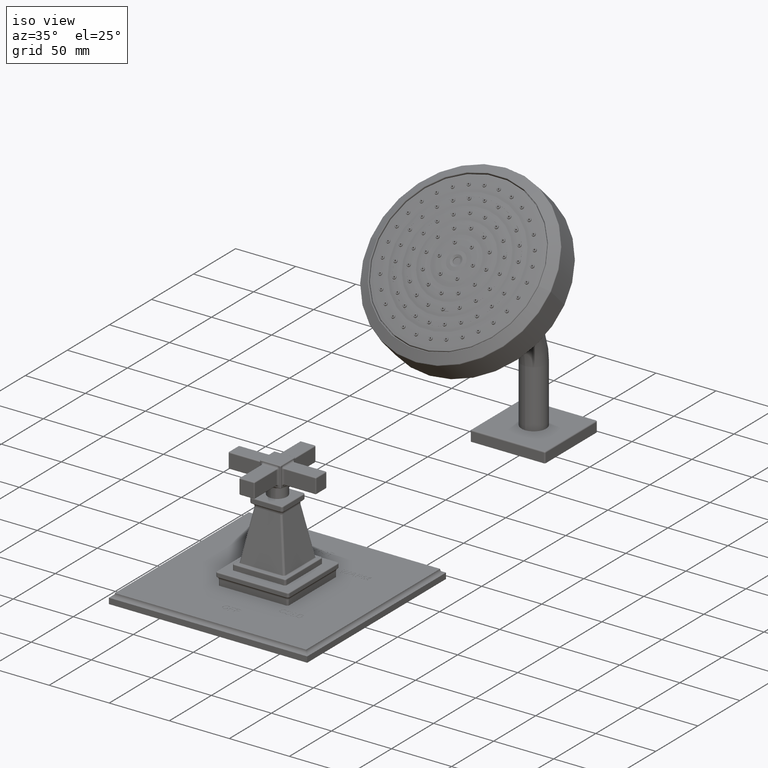
[diagram: clean part render]
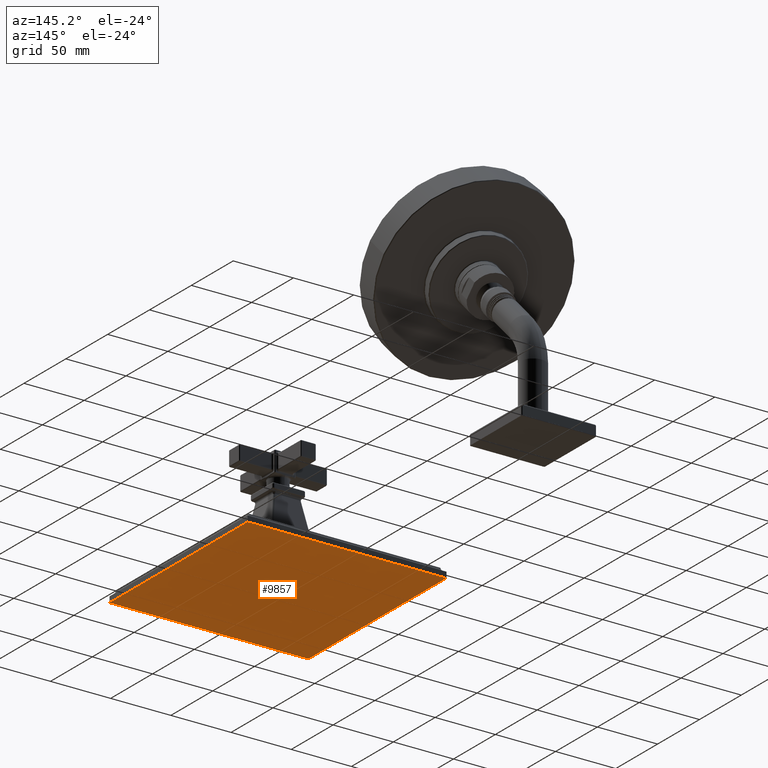
[diagram: tour spotlight — one face highlighted and labeled with its STEP entity id]
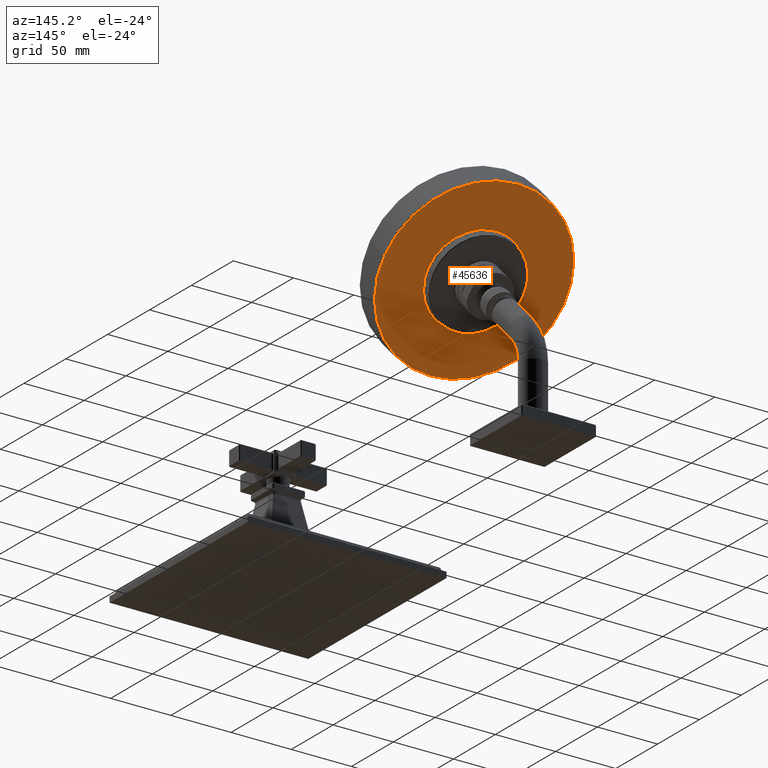
[diagram: tour spotlight — one face highlighted and labeled with its STEP entity id]
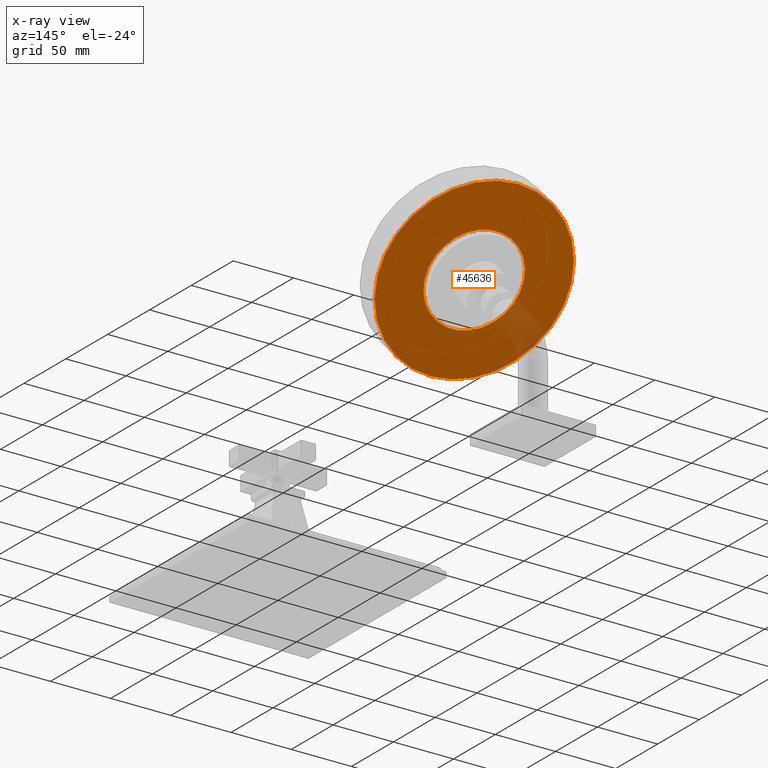
[diagram: x-ray of the same camera — body ghosted, this tour face saturated]
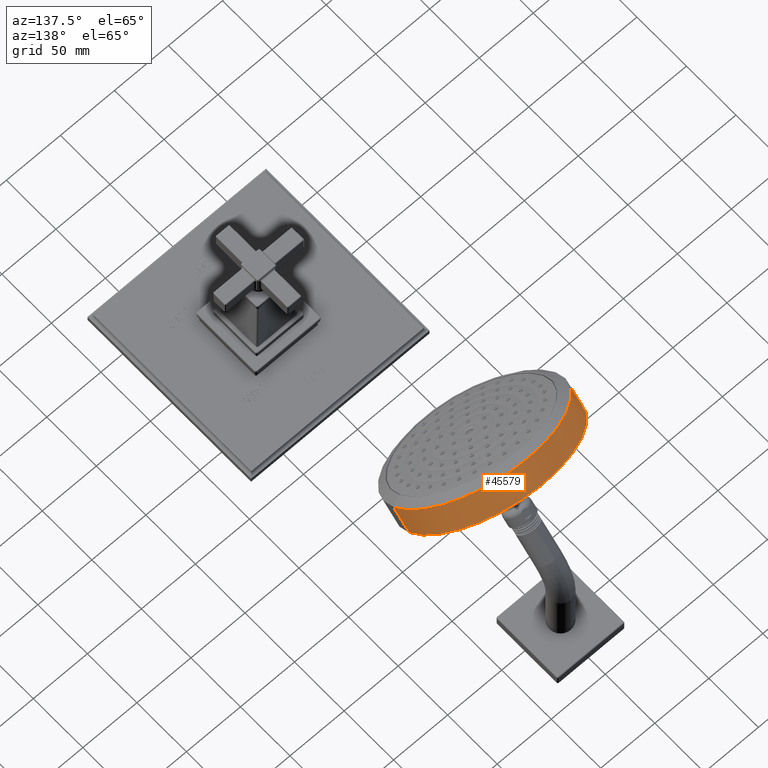
[diagram: tour spotlight — one face highlighted and labeled with its STEP entity id]
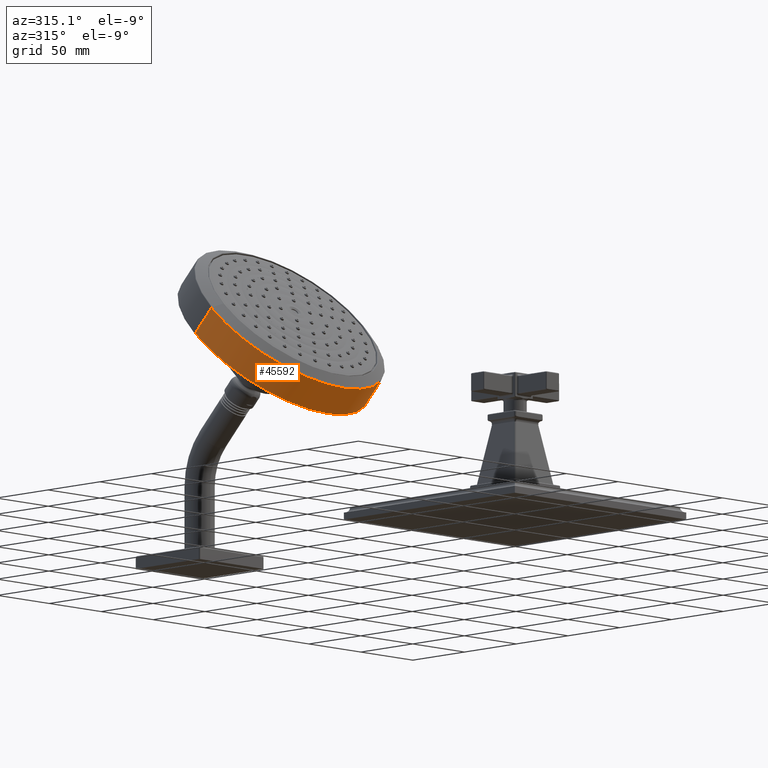
[diagram: tour spotlight — one face highlighted and labeled with its STEP entity id]
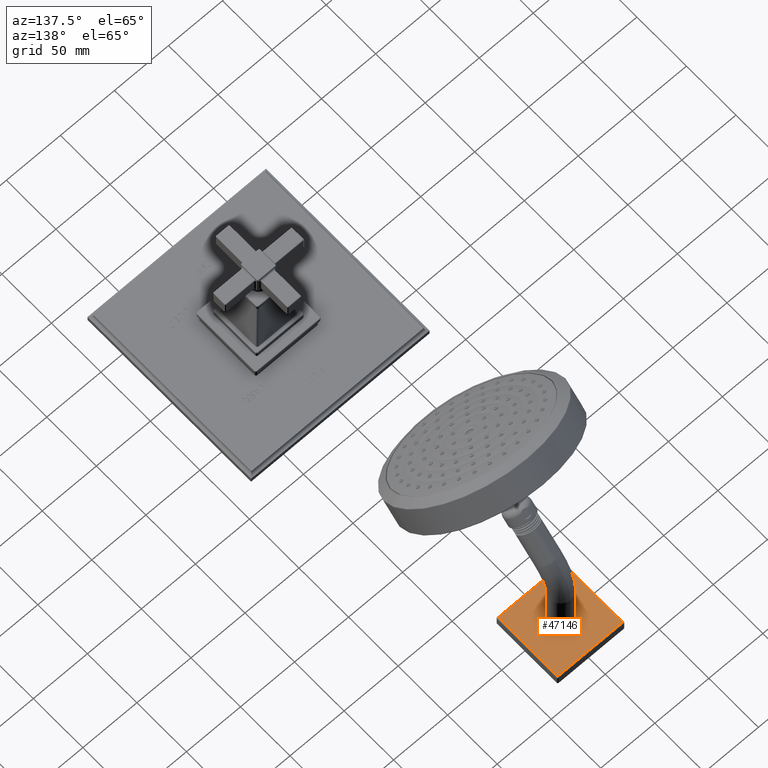
[diagram: tour spotlight — one face highlighted and labeled with its STEP entity id]
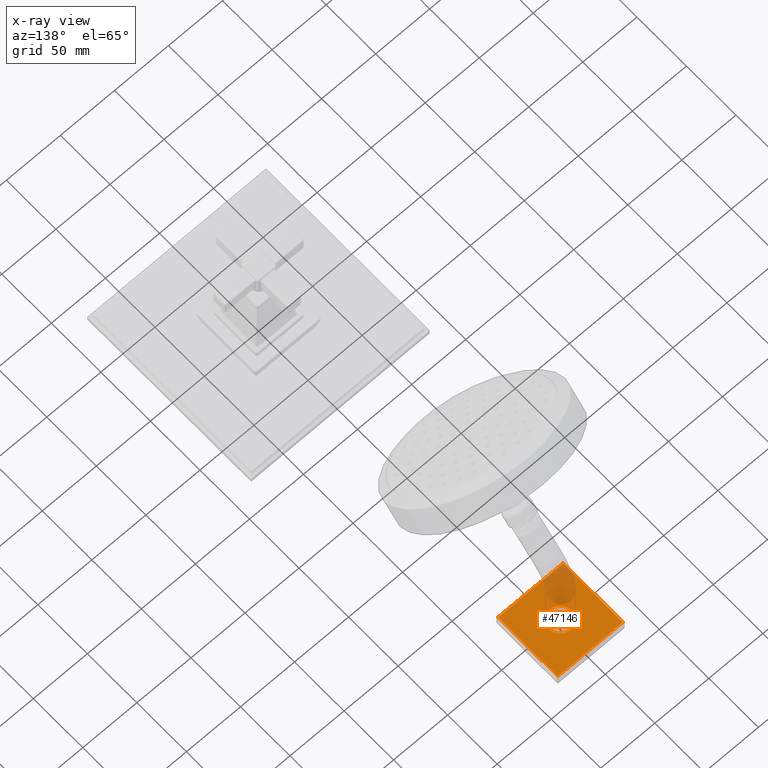
[diagram: x-ray of the same camera — body ghosted, this tour face saturated]
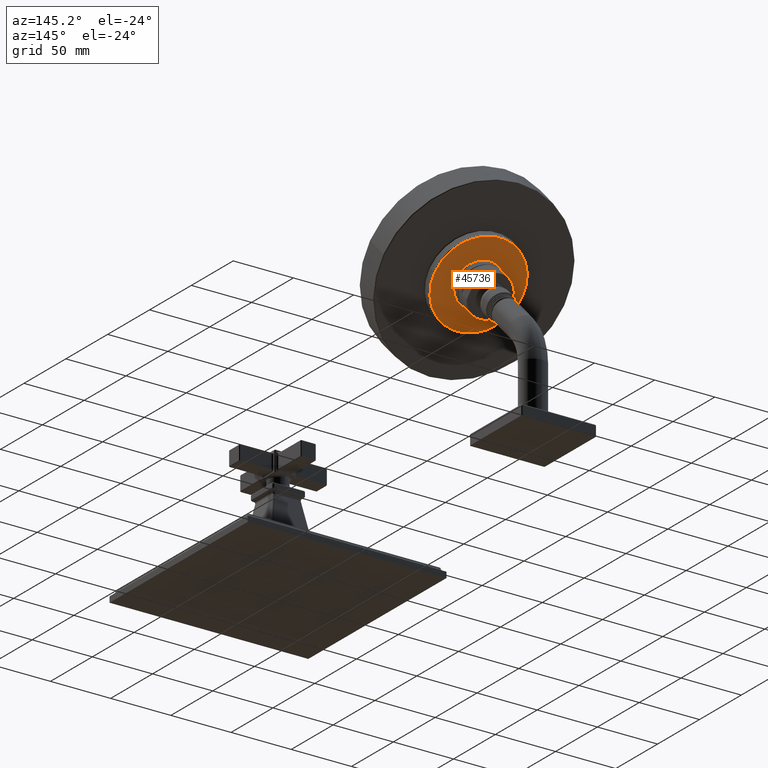
[diagram: tour spotlight — one face highlighted and labeled with its STEP entity id]
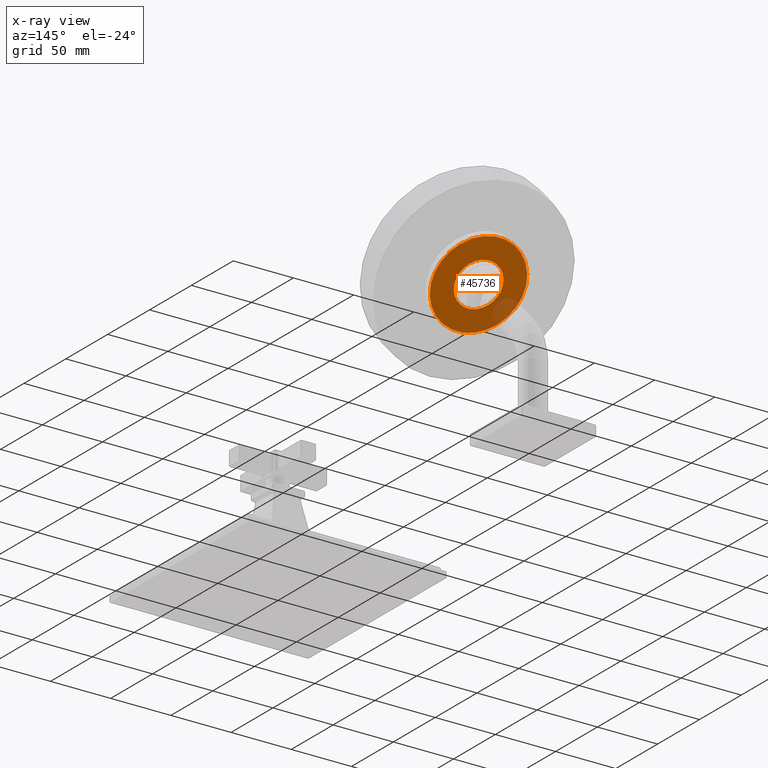
[diagram: x-ray of the same camera — body ghosted, this tour face saturated]
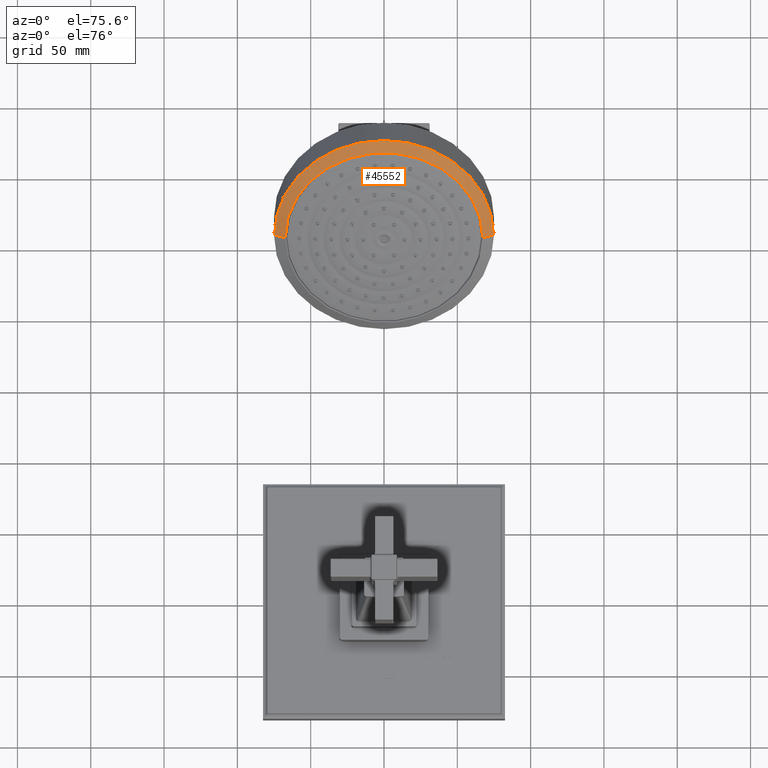
[diagram: tour spotlight — one face highlighted and labeled with its STEP entity id]
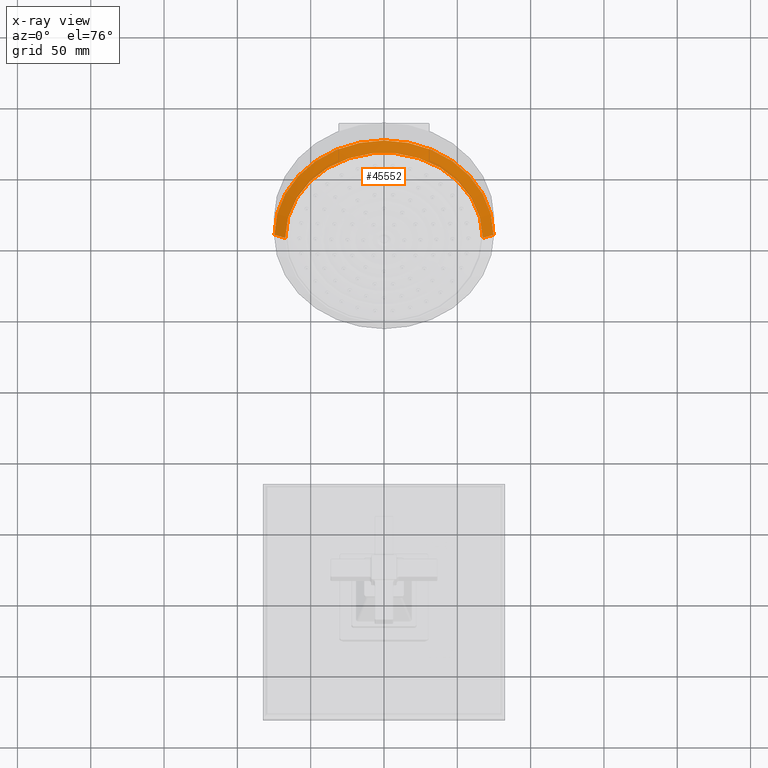
[diagram: x-ray of the same camera — body ghosted, this tour face saturated]
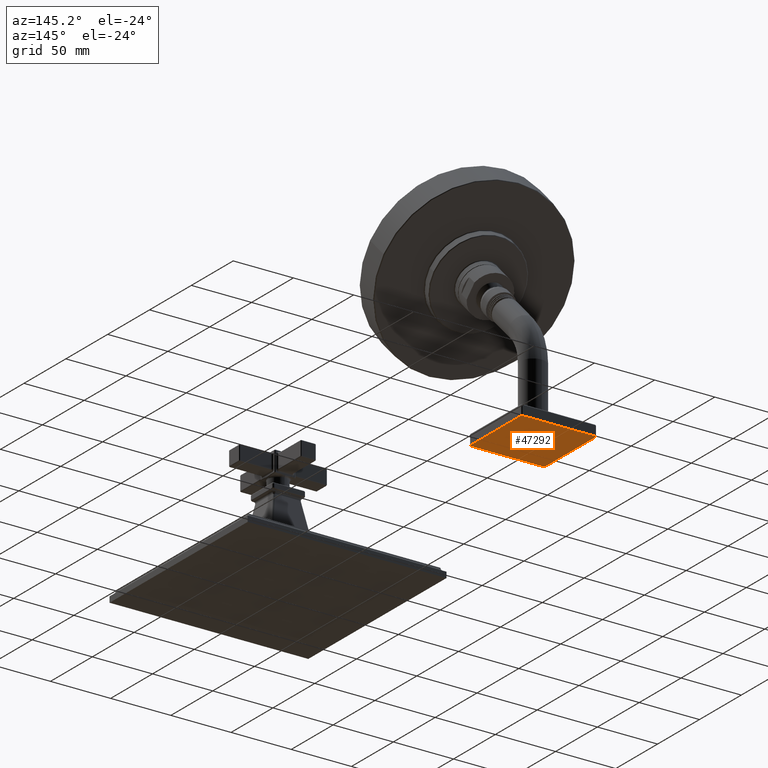
[diagram: tour spotlight — one face highlighted and labeled with its STEP entity id]
A machine part: a face-by-face anatomy tour. The part has 1373 B-rep faces; the first image is the clean iso view, then the 8 largest visible faces are spotlighted one at a time (largest first), each with its STEP entity span.

Face 1 — auxiliary view, entity #9857. In plain terms, the highlighted planar face has unit normal (0, 0, -1).
Definition (entity closure, byte-faithful):
#1578=DIRECTION('',(0.E0,-1.E0,0.E0));
#1579=VECTOR('',#1578,6.5E0);
#1580=CARTESIAN_POINT('',(-3.25E0,3.25E0,0.E0));
#1581=LINE('',#1580,#1579);
#1586=DIRECTION('',(1.E0,0.E0,0.E0));
#1587=VECTOR('',#1586,6.5E0);
#1588=CARTESIAN_POINT('',(-3.25E0,-3.25E0,0.E0));
#1589=LINE('',#1588,#1587);
#1598=DIRECTION('',(0.E0,1.E0,0.E0));
#1599=VECTOR('',#1598,6.5E0);
#1600=CARTESIAN_POINT('',(3.25E0,-3.25E0,0.E0));
#1601=LINE('',#1600,#1599);
#1610=DIRECTION('',(-1.E0,0.E0,0.E0));
#1611=VECTOR('',#1610,6.5E0);
#1612=CARTESIAN_POINT('',(3.25E0,3.25E0,0.E0));
#1613=LINE('',#1612,#1611);
#6671=CARTESIAN_POINT('',(-3.25E0,3.25E0,0.E0));
#6672=CARTESIAN_POINT('',(-3.25E0,-3.25E0,0.E0));
#6673=VERTEX_POINT('',#6671);
#6674=VERTEX_POINT('',#6672);
#6675=CARTESIAN_POINT('',(3.25E0,-3.25E0,0.E0));
#6676=VERTEX_POINT('',#6675);
#6677=CARTESIAN_POINT('',(3.25E0,3.25E0,0.E0));
#6678=VERTEX_POINT('',#6677);
#9843=CARTESIAN_POINT('',(-3.25E0,3.25E0,0.E0));
#9844=DIRECTION('',(0.E0,0.E0,-1.E0));
#9845=DIRECTION('',(1.E0,0.E0,0.E0));
#9846=AXIS2_PLACEMENT_3D('',#9843,#9844,#9845);
#9847=PLANE('',#9846);
#9848=ORIENTED_EDGE('',*,*,#9833,.T.);
#9850=ORIENTED_EDGE('',*,*,#9849,.T.);
#9852=ORIENTED_EDGE('',*,*,#9851,.T.);
#9854=ORIENTED_EDGE('',*,*,#9853,.T.);
#9855=EDGE_LOOP('',(#9848,#9850,#9852,#9854));
#9856=FACE_OUTER_BOUND('',#9855,.F.);
#9857=ADVANCED_FACE('',(#9856),#9847,.T.);
#9833=EDGE_CURVE('',#6673,#6674,#1581,.T.);
#9849=EDGE_CURVE('',#6674,#6676,#1589,.T.);
#9851=EDGE_CURVE('',#6676,#6678,#1601,.T.);
#9853=EDGE_CURVE('',#6678,#6673,#1613,.T.);

Face 2 — auxiliary view, entity #45636. An x-ray twin of the same camera follows (body ghosted, this face saturated) — the face is partly hidden behind the body. In plain terms, the highlighted planar face has unit normal (0, 0.7071, -0.7071).
Definition (entity closure, byte-faithful):
#28703=CARTESIAN_POINT('',(0.E0,9.230061889902E0,5.744811844251E0));
#28704=DIRECTION('',(0.E0,-7.071067811865E-1,7.071067811865E-1));
#28705=DIRECTION('',(-1.E0,0.E0,0.E0));
#28706=AXIS2_PLACEMENT_3D('',#28703,#28704,#28705);
#28708=CARTESIAN_POINT('',(0.E0,9.230061889902E0,5.744811844251E0));
#28709=DIRECTION('',(0.E0,-7.071067811865E-1,7.071067811865E-1));
#28710=DIRECTION('',(1.E0,0.E0,0.E0));
#28711=AXIS2_PLACEMENT_3D('',#28708,#28709,#28710);
#28713=CARTESIAN_POINT('',(0.E0,9.230061889902E0,5.744811844251E0));
#28714=DIRECTION('',(0.E0,7.071067811865E-1,-7.071067811865E-1));
#28715=DIRECTION('',(1.E0,0.E0,0.E0));
#28716=AXIS2_PLACEMENT_3D('',#28713,#28714,#28715);
#28718=CARTESIAN_POINT('',(0.E0,9.230061889902E0,5.744811844251E0));
#28719=DIRECTION('',(0.E0,7.071067811865E-1,-7.071067811865E-1));
#28720=DIRECTION('',(-1.E0,0.E0,0.E0));
#28721=AXIS2_PLACEMENT_3D('',#28718,#28719,#28720);
#35358=CARTESIAN_POINT('',(1.49E0,9.230061889902E0,5.744811844251E0));
#35359=CARTESIAN_POINT('',(-1.49E0,9.230061889902E0,5.744811844251E0));
#35360=VERTEX_POINT('',#35358);
#35361=VERTEX_POINT('',#35359);
#35394=CARTESIAN_POINT('',(-2.925E0,9.230061889902E0,5.744811844251E0));
#35395=CARTESIAN_POINT('',(2.925E0,9.230061889902E0,5.744811844251E0));
#35396=VERTEX_POINT('',#35394);
#35397=VERTEX_POINT('',#35395);
#45621=CARTESIAN_POINT('',(0.E0,9.230061889902E0,5.744811844251E0));
#45622=DIRECTION('',(0.E0,7.071067811865E-1,-7.071067811865E-1));
#45623=DIRECTION('',(-1.E0,0.E0,0.E0));
#45624=AXIS2_PLACEMENT_3D('',#45621,#45622,#45623);
#45625=PLANE('',#45624);
#45626=ORIENTED_EDGE('',*,*,#45601,.T.);
#45627=ORIENTED_EDGE('',*,*,#45615,.T.);
#45628=EDGE_LOOP('',(#45626,#45627));
#45629=FACE_OUTER_BOUND('',#45628,.F.);
#45631=ORIENTED_EDGE('',*,*,#45630,.T.);
#45633=ORIENTED_EDGE('',*,*,#45632,.T.);
#45634=EDGE_LOOP('',(#45631,#45633));
#45635=FACE_BOUND('',#45634,.F.);
#45636=ADVANCED_FACE('',(#45629,#45635),#45625,.T.);
#28707=CIRCLE('',#28706,2.925E0);
#28712=CIRCLE('',#28711,2.925E0);
#28717=CIRCLE('',#28716,1.49E0);
#28722=CIRCLE('',#28721,1.49E0);
#45601=EDGE_CURVE('',#35396,#35397,#28707,.T.);
#45615=EDGE_CURVE('',#35397,#35396,#28712,.T.);
#45630=EDGE_CURVE('',#35360,#35361,#28717,.T.);
#45632=EDGE_CURVE('',#35361,#35360,#28722,.T.);

Face 3 — auxiliary view, entity #45579. In plain terms, the highlighted cylindrical surface (partial cylindrical patch) has radius 75.057 mm, axis along (0, 0.7071, -0.7071).
Definition (entity closure, byte-faithful):
#28665=CARTESIAN_POINT('',(0.E0,8.587528459237E0,6.387345274916E0));
#28666=DIRECTION('',(0.E0,-7.071067811865E-1,7.071067811865E-1));
#28667=DIRECTION('',(1.E0,0.E0,0.E0));
#28668=AXIS2_PLACEMENT_3D('',#28665,#28666,#28667);
#28670=DIRECTION('',(0.E0,-7.071067811865E-1,7.071067811866E-1));
#28671=VECTOR('',#28670,8.786794919243E-1);
#28672=CARTESIAN_POINT('',(-2.955E0,9.208848686466E0,5.766025047687E0));
#28673=LINE('',#28672,#28671);
#28674=CARTESIAN_POINT('',(0.E0,9.208848686466E0,5.766025047687E0));
#28675=DIRECTION('',(0.E0,-7.071067811865E-1,7.071067811865E-1));
#28676=DIRECTION('',(1.E0,0.E0,0.E0));
#28677=AXIS2_PLACEMENT_3D('',#28674,#28675,#28676);
#28679=DIRECTION('',(0.E0,-7.071067811866E-1,7.071067811865E-1));
#28680=VECTOR('',#28679,8.786794919243E-1);
#28681=CARTESIAN_POINT('',(2.955E0,9.208848686466E0,5.766025047687E0));
#28682=LINE('',#28681,#28680);
#35378=CARTESIAN_POINT('',(2.955E0,8.587528459237E0,6.387345274916E0));
#35379=CARTESIAN_POINT('',(-2.955E0,8.587528459237E0,6.387345274916E0));
#35380=VERTEX_POINT('',#35378);
#35381=VERTEX_POINT('',#35379);
#35390=CARTESIAN_POINT('',(-2.955E0,9.208848686466E0,5.766025047687E0));
#35391=CARTESIAN_POINT('',(2.955E0,9.208848686466E0,5.766025047687E0));
#35392=VERTEX_POINT('',#35390);
#35393=VERTEX_POINT('',#35391);
#45565=CARTESIAN_POINT('',(0.E0,8.391822156144E0,6.583051578009E0));
#45566=DIRECTION('',(0.E0,7.071067811865E-1,-7.071067811865E-1));
#45567=DIRECTION('',(-1.E0,0.E0,0.E0));
#45568=AXIS2_PLACEMENT_3D('',#45565,#45566,#45567);
#45569=CYLINDRICAL_SURFACE('',#45568,2.955E0);
#45570=ORIENTED_EDGE('',*,*,#45534,.T.);
#45572=ORIENTED_EDGE('',*,*,#45571,.F.);
#45574=ORIENTED_EDGE('',*,*,#45573,.F.);
#45576=ORIENTED_EDGE('',*,*,#45575,.T.);
#45577=EDGE_LOOP('',(#45570,#45572,#45574,#45576));
#45578=FACE_OUTER_BOUND('',#45577,.F.);
#45579=ADVANCED_FACE('',(#45578),#45569,.T.);
#28669=CIRCLE('',#28668,2.955E0);
#28678=CIRCLE('',#28677,2.955E0);
#45534=EDGE_CURVE('',#35380,#35381,#28669,.T.);
#45571=EDGE_CURVE('',#35392,#35381,#28673,.T.);
#45573=EDGE_CURVE('',#35393,#35392,#28678,.T.);
#45575=EDGE_CURVE('',#35393,#35380,#28682,.T.);

Face 4 — auxiliary view, entity #45592. In plain terms, the highlighted cylindrical surface (partial cylindrical patch) has radius 75.057 mm, axis along (0, 0.7071, -0.7071).
Definition (entity closure, byte-faithful):
#28670=DIRECTION('',(0.E0,-7.071067811865E-1,7.071067811866E-1));
#28671=VECTOR('',#28670,8.786794919243E-1);
#28672=CARTESIAN_POINT('',(-2.955E0,9.208848686466E0,5.766025047687E0));
#28673=LINE('',#28672,#28671);
#28679=DIRECTION('',(0.E0,-7.071067811866E-1,7.071067811865E-1));
#28680=VECTOR('',#28679,8.786794919243E-1);
#28681=CARTESIAN_POINT('',(2.955E0,9.208848686466E0,5.766025047687E0));
#28682=LINE('',#28681,#28680);
#28683=CARTESIAN_POINT('',(0.E0,8.587528459237E0,6.387345274916E0));
#28684=DIRECTION('',(0.E0,-7.071067811865E-1,7.071067811865E-1));
#28685=DIRECTION('',(-1.E0,0.E0,0.E0));
#28686=AXIS2_PLACEMENT_3D('',#28683,#28684,#28685);
#28688=CARTESIAN_POINT('',(0.E0,9.208848686466E0,5.766025047687E0));
#28689=DIRECTION('',(0.E0,-7.071067811865E-1,7.071067811865E-1));
#28690=DIRECTION('',(-1.E0,0.E0,0.E0));
#28691=AXIS2_PLACEMENT_3D('',#28688,#28689,#28690);
#35378=CARTESIAN_POINT('',(2.955E0,8.587528459237E0,6.387345274916E0));
#35379=CARTESIAN_POINT('',(-2.955E0,8.587528459237E0,6.387345274916E0));
#35380=VERTEX_POINT('',#35378);
#35381=VERTEX_POINT('',#35379);
#35390=CARTESIAN_POINT('',(-2.955E0,9.208848686466E0,5.766025047687E0));
#35391=CARTESIAN_POINT('',(2.955E0,9.208848686466E0,5.766025047687E0));
#35392=VERTEX_POINT('',#35390);
#35393=VERTEX_POINT('',#35391);
#45580=CARTESIAN_POINT('',(0.E0,8.391822156144E0,6.583051578009E0));
#45581=DIRECTION('',(0.E0,7.071067811865E-1,-7.071067811865E-1));
#45582=DIRECTION('',(-1.E0,0.E0,0.E0));
#45583=AXIS2_PLACEMENT_3D('',#45580,#45581,#45582);
#45584=CYLINDRICAL_SURFACE('',#45583,2.955E0);
#45585=ORIENTED_EDGE('',*,*,#45519,.T.);
#45586=ORIENTED_EDGE('',*,*,#45575,.F.);
#45588=ORIENTED_EDGE('',*,*,#45587,.F.);
#45589=ORIENTED_EDGE('',*,*,#45571,.T.);
#45590=EDGE_LOOP('',(#45585,#45586,#45588,#45589));
#45591=FACE_OUTER_BOUND('',#45590,.F.);
#45592=ADVANCED_FACE('',(#45591),#45584,.T.);
#28687=CIRCLE('',#28686,2.955E0);
#28692=CIRCLE('',#28691,2.955E0);
#45519=EDGE_CURVE('',#35381,#35380,#28687,.T.);
#45571=EDGE_CURVE('',#35392,#35381,#28673,.T.);
#45575=EDGE_CURVE('',#35393,#35380,#28682,.T.);
#45587=EDGE_CURVE('',#35392,#35393,#28692,.T.);

Face 5 — auxiliary view, entity #47146. An x-ray twin of the same camera follows (body ghosted, this face saturated) — the face is partly hidden behind the body. In plain terms, the highlighted planar face has unit normal (0, 0, 1).
Definition (entity closure, byte-faithful):
#30206=CARTESIAN_POINT('',(0.E0,1.2E1,3.5E-1));
#30207=DIRECTION('',(0.E0,0.E0,1.E0));
#30208=DIRECTION('',(0.E0,-1.E0,0.E0));
#30209=AXIS2_PLACEMENT_3D('',#30206,#30207,#30208);
#30211=CARTESIAN_POINT('',(0.E0,1.2E1,3.5E-1));
#30212=DIRECTION('',(0.E0,0.E0,1.E0));
#30213=DIRECTION('',(0.E0,1.E0,0.E0));
#30214=AXIS2_PLACEMENT_3D('',#30211,#30212,#30213);
#30216=DIRECTION('',(0.E0,-1.E0,0.E0));
#30217=VECTOR('',#30216,2.37E0);
#30218=CARTESIAN_POINT('',(-1.185E0,1.3185E1,3.5E-1));
#30219=LINE('',#30218,#30217);
#30230=DIRECTION('',(1.E0,0.E0,0.E0));
#30231=VECTOR('',#30230,2.37E0);
#30232=CARTESIAN_POINT('',(-1.185E0,1.0815E1,3.5E-1));
#30233=LINE('',#30232,#30231);
#30244=DIRECTION('',(0.E0,1.E0,0.E0));
#30245=VECTOR('',#30244,2.37E0);
#30246=CARTESIAN_POINT('',(1.185E0,1.0815E1,3.5E-1));
#30247=LINE('',#30246,#30245);
#30258=DIRECTION('',(-1.E0,0.E0,0.E0));
#30259=VECTOR('',#30258,2.37E0);
#30260=CARTESIAN_POINT('',(1.185E0,1.3185E1,3.5E-1));
#30261=LINE('',#30260,#30259);
#35292=CARTESIAN_POINT('',(-1.185E0,1.3185E1,3.5E-1));
#35293=CARTESIAN_POINT('',(-1.185E0,1.0815E1,3.5E-1));
#35294=VERTEX_POINT('',#35292);
#35295=VERTEX_POINT('',#35293);
#35296=CARTESIAN_POINT('',(1.185E0,1.3185E1,3.5E-1));
#35297=VERTEX_POINT('',#35296);
#35298=CARTESIAN_POINT('',(1.185E0,1.0815E1,3.5E-1));
#35299=VERTEX_POINT('',#35298);
#35346=CARTESIAN_POINT('',(0.E0,1.159375E1,3.5E-1));
#35347=CARTESIAN_POINT('',(0.E0,1.240625E1,3.5E-1));
#35348=VERTEX_POINT('',#35346);
#35349=VERTEX_POINT('',#35347);
#47126=CARTESIAN_POINT('',(0.E0,1.2E1,3.5E-1));
#47127=DIRECTION('',(0.E0,0.E0,1.E0));
#47128=DIRECTION('',(0.E0,1.E0,0.E0));
#47129=AXIS2_PLACEMENT_3D('',#47126,#47127,#47128);
#47130=PLANE('',#47129);
#47132=ORIENTED_EDGE('',*,*,#47131,.F.);
#47134=ORIENTED_EDGE('',*,*,#47133,.F.);
#47136=ORIENTED_EDGE('',*,*,#47135,.F.);
#47138=ORIENTED_EDGE('',*,*,#47137,.F.);
#47139=EDGE_LOOP('',(#47132,#47134,#47136,#47138));
#47140=FACE_OUTER_BOUND('',#47139,.F.);
#47142=ORIENTED_EDGE('',*,*,#47141,.T.);
#47143=ORIENTED_EDGE('',*,*,#47116,.T.);
#47144=EDGE_LOOP('',(#47142,#47143));
#47145=FACE_BOUND('',#47144,.F.);
#47146=ADVANCED_FACE('',(#47140,#47145),#47130,.T.);
#30210=CIRCLE('',#30209,4.0625E-1);
#30215=CIRCLE('',#30214,4.0625E-1);
#47116=EDGE_CURVE('',#35349,#35348,#30215,.T.);
#47131=EDGE_CURVE('',#35294,#35295,#30219,.T.);
#47133=EDGE_CURVE('',#35297,#35294,#30261,.T.);
#47135=EDGE_CURVE('',#35299,#35297,#30247,.T.);
#47137=EDGE_CURVE('',#35295,#35299,#30233,.T.);
#47141=EDGE_CURVE('',#35348,#35349,#30210,.T.);

Face 6 — auxiliary view, entity #45736. An x-ray twin of the same camera follows (body ghosted, this face saturated) — the face is partly hidden behind the body. In plain terms, the highlighted planar face has unit normal (0, 0.7071, -0.7071).
Definition (entity closure, byte-faithful):
#28771=CARTESIAN_POINT('',(0.E0,9.435829963227E0,5.539043770926E0));
#28772=DIRECTION('',(0.E0,-7.071067811865E-1,7.071067811865E-1));
#28773=DIRECTION('',(-1.E0,0.E0,0.E0));
#28774=AXIS2_PLACEMENT_3D('',#28771,#28772,#28773);
#28776=CARTESIAN_POINT('',(0.E0,9.435829963227E0,5.539043770926E0));
#28777=DIRECTION('',(0.E0,-7.071067811865E-1,7.071067811865E-1));
#28778=DIRECTION('',(1.E0,0.E0,0.E0));
#28779=AXIS2_PLACEMENT_3D('',#28776,#28777,#28778);
#28781=CARTESIAN_POINT('',(0.E0,9.435829963227E0,5.539043770926E0));
#28782=DIRECTION('',(0.E0,7.071067811865E-1,-7.071067811865E-1));
#28783=DIRECTION('',(1.E0,0.E0,0.E0));
#28784=AXIS2_PLACEMENT_3D('',#28781,#28782,#28783);
#28786=CARTESIAN_POINT('',(0.E0,9.435829963227E0,5.539043770926E0));
#28787=DIRECTION('',(0.E0,7.071067811865E-1,-7.071067811865E-1));
#28788=DIRECTION('',(-1.E0,0.E0,0.E0));
#28789=AXIS2_PLACEMENT_3D('',#28786,#28787,#28788);
#35366=CARTESIAN_POINT('',(7.3E-1,9.435829963227E0,5.539043770926E0));
#35367=CARTESIAN_POINT('',(-7.3E-1,9.435829963227E0,5.539043770926E0));
#35368=VERTEX_POINT('',#35366);
#35369=VERTEX_POINT('',#35367);
#35402=CARTESIAN_POINT('',(-1.43E0,9.435829963227E0,5.539043770926E0));
#35403=CARTESIAN_POINT('',(1.43E0,9.435829963227E0,5.539043770926E0));
#35404=VERTEX_POINT('',#35402);
#35405=VERTEX_POINT('',#35403);
#45721=CARTESIAN_POINT('',(0.E0,9.435829963227E0,5.539043770926E0));
#45722=DIRECTION('',(0.E0,7.071067811865E-1,-7.071067811865E-1));
#45723=DIRECTION('',(-1.E0,0.E0,0.E0));
#45724=AXIS2_PLACEMENT_3D('',#45721,#45722,#45723);
#45725=PLANE('',#45724);
#45726=ORIENTED_EDGE('',*,*,#45703,.T.);
#45727=ORIENTED_EDGE('',*,*,#45688,.T.);
#45728=EDGE_LOOP('',(#45726,#45727));
#45729=FACE_OUTER_BOUND('',#45728,.F.);
#45731=ORIENTED_EDGE('',*,*,#45730,.T.);
#45733=ORIENTED_EDGE('',*,*,#45732,.T.);
#45734=EDGE_LOOP('',(#45731,#45733));
#45735=FACE_BOUND('',#45734,.F.);
#45736=ADVANCED_FACE('',(#45729,#45735),#45725,.T.);
#28775=CIRCLE('',#28774,1.43E0);
#28780=CIRCLE('',#28779,1.43E0);
#28785=CIRCLE('',#28784,7.3E-1);
#28790=CIRCLE('',#28789,7.3E-1);
#45688=EDGE_CURVE('',#35405,#35404,#28780,.T.);
#45703=EDGE_CURVE('',#35404,#35405,#28775,.T.);
#45730=EDGE_CURVE('',#35368,#35369,#28785,.T.);
#45732=EDGE_CURVE('',#35369,#35368,#28790,.T.);

Face 7 — auxiliary view, entity #45552. An x-ray twin of the same camera follows (body ghosted, this face saturated) — the face is partly hidden behind the body. In plain terms, the highlighted conical surface has half-angle 60 deg.
Definition (entity closure, byte-faithful):
#28637=CARTESIAN_POINT('',(0.E0,8.569157286166E0,6.405716447987E0));
#28638=DIRECTION('',(0.E0,-7.071067811865E-1,7.071067811865E-1));
#28639=DIRECTION('',(1.E0,0.E0,0.E0));
#28640=AXIS2_PLACEMENT_3D('',#28637,#28638,#28639);
#28642=DIRECTION('',(-8.660254037844E-1,-3.535533905933E-1,3.535533905933E-1));
#28643=VECTOR('',#28642,3.300933599904E-1);
#28644=CARTESIAN_POINT('',(2.94E0,8.569157286166E0,6.405716447987E0));
#28645=LINE('',#28644,#28643);
#28646=CARTESIAN_POINT('',(0.E0,8.452451659529E0,6.522422074624E0));
#28647=DIRECTION('',(0.E0,-7.071067811865E-1,7.071067811865E-1));
#28648=DIRECTION('',(1.E0,0.E0,0.E0));
#28649=AXIS2_PLACEMENT_3D('',#28646,#28647,#28648);
#28651=DIRECTION('',(8.660254037844E-1,-3.535533905933E-1,3.535533905933E-1));
#28652=VECTOR('',#28651,3.300933599904E-1);
#28653=CARTESIAN_POINT('',(-2.94E0,8.569157286166E0,6.405716447987E0));
#28654=LINE('',#28653,#28652);
#35374=CARTESIAN_POINT('',(2.94E0,8.569157286166E0,6.405716447987E0));
#35375=CARTESIAN_POINT('',(-2.94E0,8.569157286166E0,6.405716447987E0));
#35376=VERTEX_POINT('',#35374);
#35377=VERTEX_POINT('',#35375);
#35382=CARTESIAN_POINT('',(-2.654130764628E0,8.452451659529E0,
6.522422074624E0));
#35383=CARTESIAN_POINT('',(2.654130764628E0,8.452451659529E0,6.522422074624E0));
#35384=VERTEX_POINT('',#35382);
#35385=VERTEX_POINT('',#35383);
#45540=CARTESIAN_POINT('',(0.E0,8.510804472848E0,6.464069261305E0));
#45541=DIRECTION('',(0.E0,7.071067811865E-1,-7.071067811865E-1));
#45542=DIRECTION('',(-1.E0,0.E0,0.E0));
#45543=AXIS2_PLACEMENT_3D('',#45540,#45541,#45542);
#45544=CONICAL_SURFACE('',#45543,2.797065382314E0,6.E1);
#45545=ORIENTED_EDGE('',*,*,#45531,.F.);
#45546=ORIENTED_EDGE('',*,*,#45506,.T.);
#45548=ORIENTED_EDGE('',*,*,#45547,.T.);
#45549=ORIENTED_EDGE('',*,*,#45503,.F.);
#45550=EDGE_LOOP('',(#45545,#45546,#45548,#45549));
#45551=FACE_OUTER_BOUND('',#45550,.F.);
#45552=ADVANCED_FACE('',(#45551),#45544,.T.);
#28641=CIRCLE('',#28640,2.94E0);
#28650=CIRCLE('',#28649,2.654130764628E0);
#45503=EDGE_CURVE('',#35377,#35384,#28654,.T.);
#45506=EDGE_CURVE('',#35376,#35385,#28645,.T.);
#45531=EDGE_CURVE('',#35376,#35377,#28641,.T.);
#45547=EDGE_CURVE('',#35385,#35384,#28650,.T.);

Face 8 — auxiliary view, entity #47292. In plain terms, the highlighted planar face has unit normal (0, 0, 1).
Definition (entity closure, byte-faithful):
#30272=CARTESIAN_POINT('',(-1.185E0,1.3185E1,0.E0));
#30273=DIRECTION('',(0.E0,0.E0,-1.E0));
#30274=DIRECTION('',(-1.E0,0.E0,0.E0));
#30275=AXIS2_PLACEMENT_3D('',#30272,#30273,#30274);
#30282=CARTESIAN_POINT('',(1.185E0,1.3185E1,0.E0));
#30283=DIRECTION('',(0.E0,0.E0,-1.E0));
#30284=DIRECTION('',(0.E0,1.E0,0.E0));
#30285=AXIS2_PLACEMENT_3D('',#30282,#30283,#30284);
#30292=DIRECTION('',(0.E0,1.E0,0.E0));
#30293=VECTOR('',#30292,2.37E0);
#30294=CARTESIAN_POINT('',(1.225E0,1.0815E1,0.E0));
#30295=LINE('',#30294,#30293);
#30308=CARTESIAN_POINT('',(1.185E0,1.0815E1,0.E0));
#30309=DIRECTION('',(0.E0,0.E0,-1.E0));
#30310=DIRECTION('',(1.E0,0.E0,0.E0));
#30311=AXIS2_PLACEMENT_3D('',#30308,#30309,#30310);
#30318=DIRECTION('',(1.E0,0.E0,0.E0));
#30319=VECTOR('',#30318,2.37E0);
#30320=CARTESIAN_POINT('',(-1.185E0,1.0775E1,0.E0));
#30321=LINE('',#30320,#30319);
#30334=CARTESIAN_POINT('',(-1.185E0,1.0815E1,0.E0));
#30335=DIRECTION('',(0.E0,0.E0,-1.E0));
#30336=DIRECTION('',(0.E0,-1.E0,0.E0));
#30337=AXIS2_PLACEMENT_3D('',#30334,#30335,#30336);
#30344=DIRECTION('',(0.E0,-1.E0,0.E0));
#30345=VECTOR('',#30344,2.37E0);
#30346=CARTESIAN_POINT('',(-1.225E0,1.3185E1,0.E0));
#30347=LINE('',#30346,#30345);
#30360=DIRECTION('',(-1.E0,0.E0,0.E0));
#30361=VECTOR('',#30360,2.37E0);
#30362=CARTESIAN_POINT('',(1.185E0,1.3225E1,0.E0));
#30363=LINE('',#30362,#30361);
#35276=CARTESIAN_POINT('',(1.185E0,1.3225E1,0.E0));
#35277=CARTESIAN_POINT('',(1.225E0,1.3185E1,0.E0));
#35278=VERTEX_POINT('',#35276);
#35279=VERTEX_POINT('',#35277);
#35280=CARTESIAN_POINT('',(-1.185E0,1.3225E1,0.E0));
#35281=VERTEX_POINT('',#35280);
#35282=CARTESIAN_POINT('',(-1.225E0,1.3185E1,0.E0));
#35283=VERTEX_POINT('',#35282);
#35284=CARTESIAN_POINT('',(-1.225E0,1.0815E1,0.E0));
#35285=VERTEX_POINT('',#35284);
#35286=CARTESIAN_POINT('',(-1.185E0,1.0775E1,0.E0));
#35287=VERTEX_POINT('',#35286);
#35288=CARTESIAN_POINT('',(1.185E0,1.0775E1,0.E0));
#35289=VERTEX_POINT('',#35288);
#35290=CARTESIAN_POINT('',(1.225E0,1.0815E1,0.E0));
#35291=VERTEX_POINT('',#35290);
#47270=CARTESIAN_POINT('',(0.E0,1.2E1,0.E0));
#47271=DIRECTION('',(0.E0,0.E0,1.E0));
#47272=DIRECTION('',(0.E0,1.E0,0.E0));
#47273=AXIS2_PLACEMENT_3D('',#47270,#47271,#47272);
#47274=PLANE('',#47273);
#47276=ORIENTED_EDGE('',*,*,#47275,.F.);
#47278=ORIENTED_EDGE('',*,*,#47277,.T.);
#47279=ORIENTED_EDGE('',*,*,#47260,.F.);
#47281=ORIENTED_EDGE('',*,*,#47280,.T.);
#47283=ORIENTED_EDGE('',*,*,#47282,.F.);
#47285=ORIENTED_EDGE('',*,*,#47284,.T.);
#47287=ORIENTED_EDGE('',*,*,#47286,.F.);
#47289=ORIENTED_EDGE('',*,*,#47288,.T.);
#47290=EDGE_LOOP('',(#47276,#47278,#47279,#47281,#47283,#47285,#47287,#47289));
#47291=FACE_OUTER_BOUND('',#47290,.F.);
#47292=ADVANCED_FACE('',(#47291),#47274,.F.);
#30276=CIRCLE('',#30275,4.E-2);
#30286=CIRCLE('',#30285,4.E-2);
#30312=CIRCLE('',#30311,4.E-2);
#30338=CIRCLE('',#30337,4.E-2);
#47260=EDGE_CURVE('',#35283,#35281,#30276,.T.);
#47275=EDGE_CURVE('',#35278,#35279,#30286,.T.);
#47277=EDGE_CURVE('',#35278,#35281,#30363,.T.);
#47280=EDGE_CURVE('',#35283,#35285,#30347,.T.);
#47282=EDGE_CURVE('',#35287,#35285,#30338,.T.);
#47284=EDGE_CURVE('',#35287,#35289,#30321,.T.);
#47286=EDGE_CURVE('',#35291,#35289,#30312,.T.);
#47288=EDGE_CURVE('',#35291,#35279,#30295,.T.);